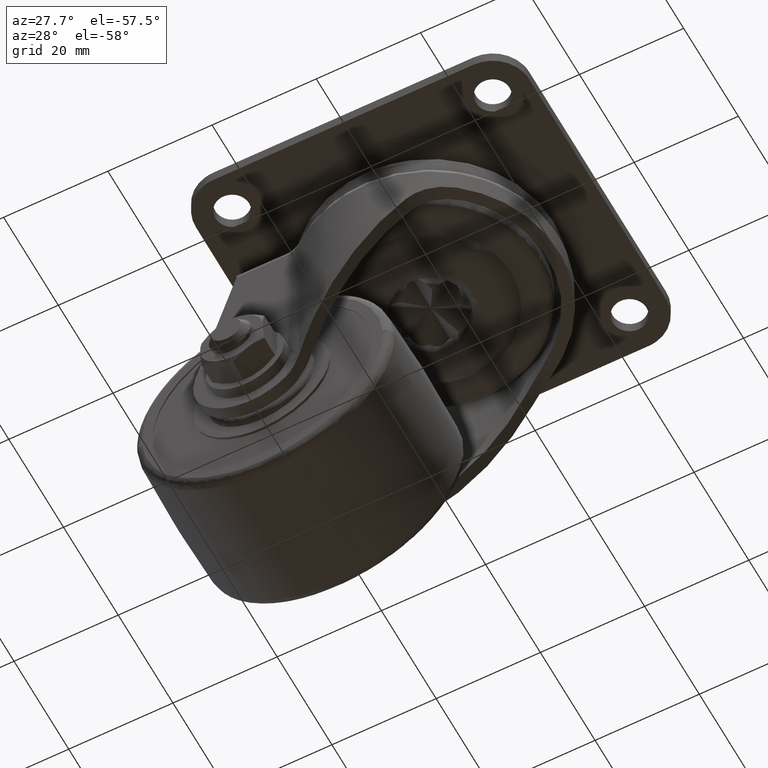
[diagram: clean part render]
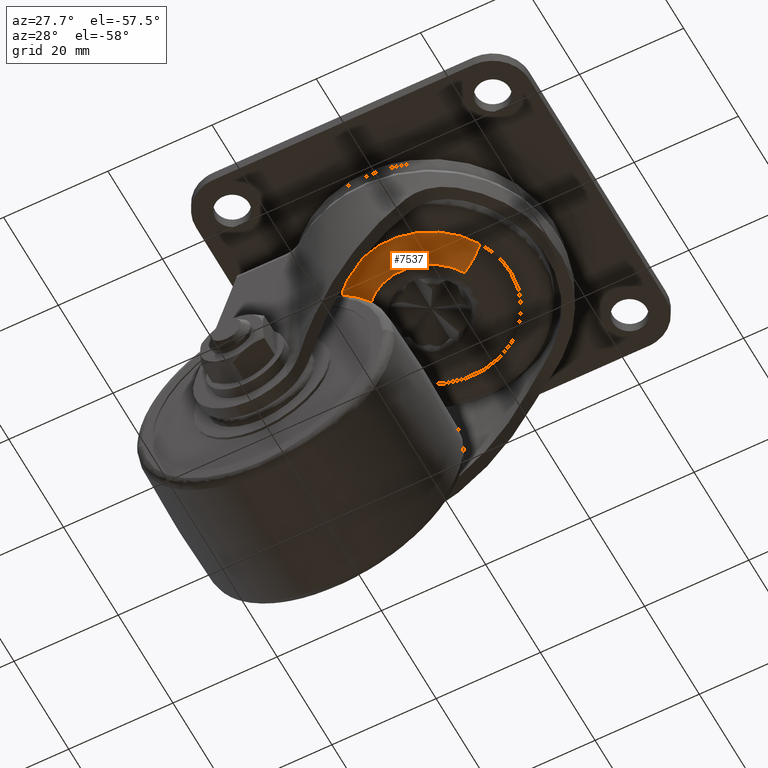
[diagram: same view with one face highlighted and labeled with its STEP entity id]
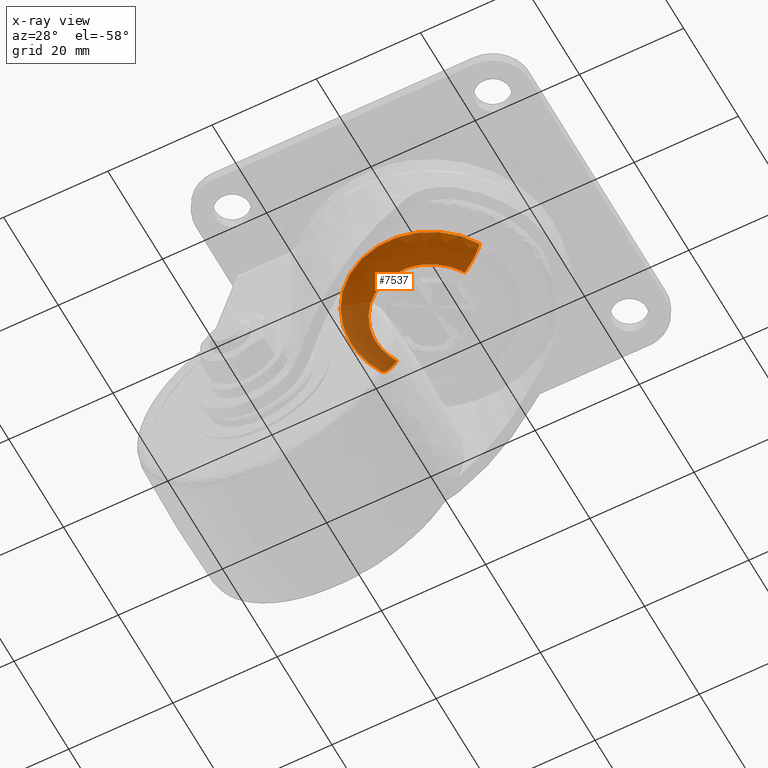
[diagram: x-ray of the same camera — body ghosted, the highlighted face saturated]
A machine part, auxiliary view. The second image highlights one B-rep face of the part: STEP entity #7537.
The next image is the same camera in x-ray: the body ghosted, the highlighted face saturated — about 28% of this face is hidden behind the body in this view.
In plain terms, the highlighted face is a freeform B-spline surface patch.
Its self-contained STEP definition (entity closure, byte-faithful):
#7234=CARTESIAN_POINT('',(-10.595471880575420,0.0,-19.338249632113499));
#7235=VERTEX_POINT('',#7234);
#7236=CARTESIAN_POINT('',(-9.220007504269418,5.220678692709386,-19.338249632114909));
#7237=VERTEX_POINT('',#7236);
#7238=CARTESIAN_POINT('',(-10.595471880575420,0.0,-19.338249632113499));
#7239=CARTESIAN_POINT('',(-10.595471880962833,2.791532478907261,-19.338249632114177));
#7240=CARTESIAN_POINT('',(-9.220007504269418,5.220678692709387,-19.338249632114913));
#7248=(BOUNDED_CURVE()B_SPLINE_CURVE(2,(#7238,#7239,#7240),.UNSPECIFIED.,.F.,.U.)B_SPLINE_CURVE_WITH_KNOTS((3,3),(0.500000000000000,0.583983638485732),.UNSPECIFIED.)CURVE()GEOMETRIC_REPRESENTATION_ITEM()RATIONAL_B_SPLINE_CURVE((1.0,0.901607047184995,0.869321279800062))REPRESENTATION_ITEM(''));
#7249=EDGE_CURVE('',#7235,#7237,#7248,.T.);
#7273=CARTESIAN_POINT('',(0.831311143271115,-10.562809576878580,-19.338249632114859));
#7274=VERTEX_POINT('',#7273);
#7280=CARTESIAN_POINT('',(0.831311143271115,-10.562809576878584,-19.338249632114852));
#7281=CARTESIAN_POINT('',(0.416297224345905,-10.595471880679813,-19.338249632114838));
#7282=CARTESIAN_POINT('',(8.051517E-012,-10.595471880677730,-19.338249632114810));
#7283=CARTESIAN_POINT('',(-10.595471880571553,-10.595471880624565,-19.338249632114128));
#7284=CARTESIAN_POINT('',(-10.595471880575420,0.0,-19.338249632113499));
#7292=(BOUNDED_CURVE()B_SPLINE_CURVE(2,(#7280,#7281,#7282,#7283,#7284),.UNSPECIFIED.,.F.,.U.)B_SPLINE_CURVE_WITH_KNOTS((3,2,3),(0.236331300621358,0.250000000000000,0.500000000000000),.UNSPECIFIED.)CURVE()GEOMETRIC_REPRESENTATION_ITEM()RATIONAL_B_SPLINE_CURVE((0.969723356148006,0.983986122567984,1.0,0.707106781186548,1.0))REPRESENTATION_ITEM(''));
#7293=EDGE_CURVE('',#7274,#7235,#7292,.T.);
#7333=CARTESIAN_POINT('',(9.220007504269422,-5.220678692709386,-19.338249632115829));
#7334=VERTEX_POINT('',#7333);
#7348=CARTESIAN_POINT('',(9.220007504269422,-5.220678692709386,-19.338249632115836));
#7349=CARTESIAN_POINT('',(6.445292079952147,-10.120979694923298,-19.338249632115282));
#7350=CARTESIAN_POINT('',(0.831311143271115,-10.562809576878584,-19.338249632114852));
#7358=(BOUNDED_CURVE()B_SPLINE_CURVE(2,(#7348,#7349,#7350),.UNSPECIFIED.,.F.,.U.)B_SPLINE_CURVE_WITH_KNOTS((3,3),(0.083983638485732,0.236331300621358),.UNSPECIFIED.)CURVE()GEOMETRIC_REPRESENTATION_ITEM()RATIONAL_B_SPLINE_CURVE((0.869321279800062,0.810754381889527,0.969723356148006))REPRESENTATION_ITEM(''));
#7359=EDGE_CURVE('',#7334,#7274,#7358,.T.);
#7394=CARTESIAN_POINT('',(-13.370232984572510,7.570672351861582,-16.544489789601322));
#7395=VERTEX_POINT('',#7394);
#7396=CARTESIAN_POINT('',(-9.220007504269418,5.220678692709386,-19.338249632114909));
#7397=CARTESIAN_POINT('',(-12.006781634690403,6.798642163559074,-19.337525610779188));
#7398=CARTESIAN_POINT('',(-13.370232984572514,7.570672351861582,-16.544489789601329));
#7406=(BOUNDED_CURVE()B_SPLINE_CURVE(2,(#7396,#7397,#7398),.UNSPECIFIED.,.F.,.U.)B_SPLINE_CURVE_WITH_KNOTS((3,3),(-1.646333723768211,-0.364269992245113),.UNSPECIFIED.)CURVE()GEOMETRIC_REPRESENTATION_ITEM()RATIONAL_B_SPLINE_CURVE((0.911603519450565,0.785800842868714,0.909539607562427))REPRESENTATION_ITEM(''));
#7407=EDGE_CURVE('',#7237,#7395,#7406,.T.);
#7436=CARTESIAN_POINT('',(13.370232984572510,-7.570672351861583,-16.544489789601322));
#7437=VERTEX_POINT('',#7436);
#7451=CARTESIAN_POINT('',(9.220007504269422,-5.220678692709386,-19.338249632115829));
#7452=CARTESIAN_POINT('',(12.006781634690403,-6.798642163559074,-19.337525610779647));
#7453=CARTESIAN_POINT('',(13.370232984572514,-7.570672351861584,-16.544489789601329));
#7461=(BOUNDED_CURVE()B_SPLINE_CURVE(2,(#7451,#7452,#7453),.UNSPECIFIED.,.F.,.U.)B_SPLINE_CURVE_WITH_KNOTS((3,3),(-1.646333723768211,-0.364269992245112),.UNSPECIFIED.)CURVE()GEOMETRIC_REPRESENTATION_ITEM()RATIONAL_B_SPLINE_CURVE((0.911603519450565,0.785800842868714,0.909539607562427))REPRESENTATION_ITEM(''));
#7462=EDGE_CURVE('',#7334,#7437,#7461,.T.);
#7467=CARTESIAN_POINT('',(-8.981819243445225,5.085808479349034,-19.331458705000973));
#7468=CARTESIAN_POINT('',(-14.067627722794260,-3.896010764096192,-19.331458705000966));
#7469=CARTESIAN_POINT('',(-5.085808479349034,-8.981819243445225,-19.331458705000973));
#7470=CARTESIAN_POINT('',(3.896010764096190,-14.067627722794260,-19.331458705000966));
#7471=CARTESIAN_POINT('',(8.981819243445225,-5.085808479349035,-19.331458705000973));
#7472=CARTESIAN_POINT('',(-12.095035123946328,6.848616134897366,-19.509899144556382));
#7473=CARTESIAN_POINT('',(-18.943651258843698,-5.246418989048961,-19.509899144556382));
#7474=CARTESIAN_POINT('',(-6.848616134897367,-12.095035123946328,-19.509899144556382));
#7475=CARTESIAN_POINT('',(5.246418989048959,-18.943651258843698,-19.509899144556382));
#7476=CARTESIAN_POINT('',(12.095035123946328,-6.848616134897367,-19.509899144556382));
#7477=CARTESIAN_POINT('',(-13.481816266298269,7.633858311522325,-16.301834661601109));
#7478=CARTESIAN_POINT('',(-21.115674577820606,-5.847957954775949,-16.301834661601116));
#7479=CARTESIAN_POINT('',(-7.633858311522325,-13.481816266298269,-16.301834661601109));
#7480=CARTESIAN_POINT('',(5.847957954775946,-21.115674577820606,-16.301834661601116));
#7481=CARTESIAN_POINT('',(13.481816266298269,-7.633858311522326,-16.301834661601109));
#7489=(BOUNDED_SURFACE()B_SPLINE_SURFACE(2,2,((#7467,#7472,#7477),(#7468,#7473,#7478),(#7469,#7474,#7479),(#7470,#7475,#7480),(#7471,#7476,#7481)),.UNSPECIFIED.,.F.,.F.,.U.)B_SPLINE_SURFACE_WITH_KNOTS((3,2,3),(3,3),(0.0,25.669755901355561,51.339511802711122),(0.0,6.526722620977454),.UNSPECIFIED.)GEOMETRIC_REPRESENTATION_ITEM()RATIONAL_B_SPLINE_SURFACE(((0.924793806621755,0.772713645899286,0.922523714266003),(0.653927971861564,0.546391058930766,0.652322774162892),(0.924793806621755,0.772713645899286,0.922523714266003),(0.653927971861564,0.546391058930766,0.652322774162892),(0.924793806621755,0.772713645899286,0.922523714266003)))REPRESENTATION_ITEM('')SURFACE());
#7490=ORIENTED_EDGE('',*,*,#7359,.F.);
#7491=ORIENTED_EDGE('',*,*,#7462,.T.);
#7492=CARTESIAN_POINT('',(-15.364834999999999,0.0,-16.544492999999999));
#7493=VERTEX_POINT('',#7492);
#7494=CARTESIAN_POINT('',(13.370232984572510,-7.570672351861583,-16.544489789601322));
#7495=CARTESIAN_POINT('',(13.085453216781120,-8.073624469132016,-16.544489805509279));
#7496=CARTESIAN_POINT('',(12.330946188543191,-9.246541801682314,-16.544489852050070));
#7497=CARTESIAN_POINT('',(10.994763030945499,-10.808749185732500,-16.544489948644909));
#7498=CARTESIAN_POINT('',(9.153421919542248,-12.422413300225100,-16.544490096598171));
#7499=CARTESIAN_POINT('',(7.231219071717562,-13.629089561835469,-16.544490264201730));
#7500=CARTESIAN_POINT('',(5.053009293971618,-14.560480830726950,-16.544490466127922));
#7501=CARTESIAN_POINT('',(2.842957111887768,-15.167869786542390,-16.544490680298871));
#7502=CARTESIAN_POINT('',(0.404289062441280,-15.428819706232289,-16.544490927889498));
#7503=CARTESIAN_POINT('',(-1.831721115089034,-15.299895466883090,-16.544491165039169));
#7504=CARTESIAN_POINT('',(-3.925134049602700,-14.900860292277081,-16.544491394726119));
#7505=CARTESIAN_POINT('',(-6.151878541862295,-14.165105320444651,-16.544491647610599));
#7506=CARTESIAN_POINT('',(-8.267301881768022,-13.027057302857560,-16.544491899938400));
#7507=CARTESIAN_POINT('',(-10.006139897154121,-11.704930470394361,-16.544492117989439));
#7508=CARTESIAN_POINT('',(-11.410273778461031,-10.355814136794180,-16.544492301816661));
#7509=CARTESIAN_POINT('',(-12.594915642344549,-8.874410428535908,-16.544492466354630));
#7510=CARTESIAN_POINT('',(-13.702115008129150,-7.053461889481268,-16.544492632147151));
#7511=CARTESIAN_POINT('',(-14.442473981710609,-5.363677414639088,-16.544492756004551));
#7512=CARTESIAN_POINT('',(-14.971474548582981,-3.572871062988516,-16.544492860563711));
#7513=CARTESIAN_POINT('',(-15.285541063960190,-1.891563133444648,-16.544492939647672));
#7514=CARTESIAN_POINT('',(-15.364855598686070,-0.656799232097368,-16.544492981927100));
#7515=CARTESIAN_POINT('',(-15.364834999999999,0.0,-16.544492999999999));
#7516=B_SPLINE_CURVE_WITH_KNOTS('',3,(#7494,#7495,#7496,#7497,#7498,#7499,#7500,#7501,#7502,#7503,#7504,#7505,#7506,#7507,#7508,#7509,#7510,#7511,#7512,#7513,#7514,#7515),.UNSPECIFIED.,.F.,.U.,(4,1,1,1,1,1,1,1,1,1,1,1,1,1,1,1,1,1,1,4),(0.000000099391414,1.733942217776722,4.177251215651168,6.147660959300673,9.063865813373241,10.955459660571130,13.241108509102309,15.920887892447350,18.285298371908251,19.940441534723711,22.304928978204259,25.299934333999850,27.112713911079261,28.846675145890771,31.132342798504201,32.787487837268401,35.230793706405372,36.649499573145540,38.383416157535372,40.353813015917559),.UNSPECIFIED.);
#7517=EDGE_CURVE('',#7437,#7493,#7516,.T.);
#7518=ORIENTED_EDGE('',*,*,#7517,.T.);
#7519=CARTESIAN_POINT('',(-15.364834999999999,0.0,-16.544492999999999));
#7520=CARTESIAN_POINT('',(-15.364835783595309,4.048089847812231,-16.544491394800655));
#7521=CARTESIAN_POINT('',(-13.370232984572514,7.570672351861582,-16.544489789601318));
#7529=(BOUNDED_CURVE()B_SPLINE_CURVE(2,(#7519,#7520,#7521),.UNSPECIFIED.,.F.,.U.)B_SPLINE_CURVE_WITH_KNOTS((3,3),(0.0,0.167967211720387),.UNSPECIFIED.)CURVE()GEOMETRIC_REPRESENTATION_ITEM()RATIONAL_B_SPLINE_CURVE((1.0,0.901607085408191,0.869321304884495))REPRESENTATION_ITEM(''));
#7530=EDGE_CURVE('',#7493,#7395,#7529,.T.);
#7531=ORIENTED_EDGE('',*,*,#7530,.T.);
#7532=ORIENTED_EDGE('',*,*,#7407,.F.);
#7533=ORIENTED_EDGE('',*,*,#7249,.F.);
#7534=ORIENTED_EDGE('',*,*,#7293,.F.);
#7535=EDGE_LOOP('',(#7490,#7491,#7518,#7531,#7532,#7533,#7534));
#7536=FACE_OUTER_BOUND('',#7535,.T.);
#7537=ADVANCED_FACE('',(#7536),#7489,.T.);